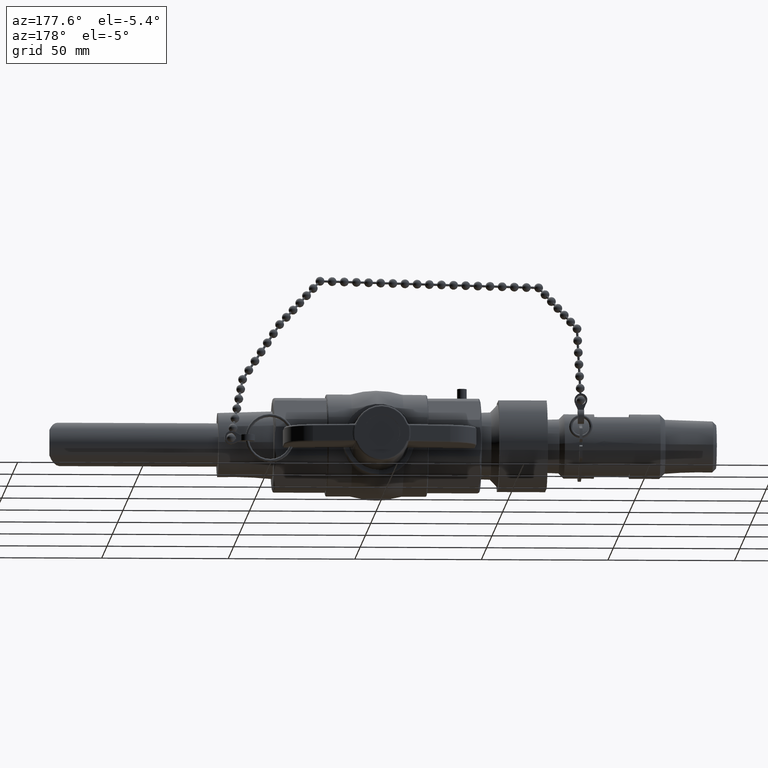
[diagram: clean part render]
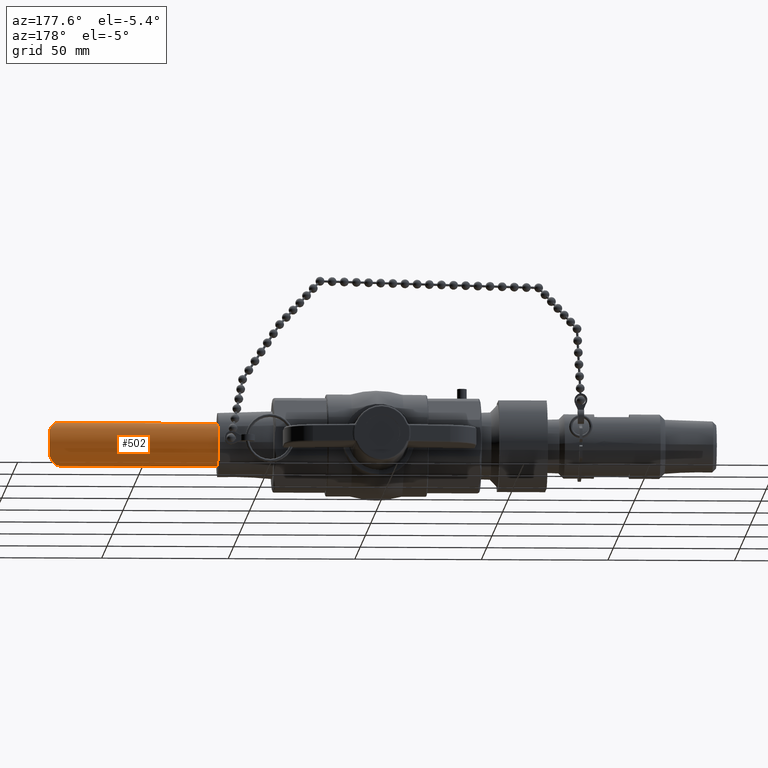
[diagram: same view with one face highlighted and labeled with its STEP entity id]
A machine part, auxiliary view. The second image highlights one B-rep face of the part: STEP entity #502.
In plain terms, the highlighted cylindrical surface (bore or boss wall) has radius 8.5725 mm, axis along (1, -0, 0).
Its self-contained STEP definition (entity closure, byte-faithful):
#425=CARTESIAN_POINT('',(2.468000000000000,-0.337500000000000,1.433204E-016));
#426=VERTEX_POINT('',#425);
#427=CARTESIAN_POINT('',(2.468000000000000,8.814487E-016,1.019886E-016));
#428=DIRECTION('',(-1.0,0.0,0.0));
#429=DIRECTION('',(0.0,1.0,0.0));
#430=AXIS2_PLACEMENT_3D('',#427,#428,#429);
#431=CIRCLE('',#430,0.337500000000001);
#432=EDGE_CURVE('',#426,#426,#431,.T.);
#474=CARTESIAN_POINT('',(1.528000000000000,9.818835E-016,-3.260173E-017));
#475=DIRECTION('',(1.0,-1.068455E-016,1.431812E-016));
#476=DIRECTION('',(0.0,1.0,0.0));
#477=AXIS2_PLACEMENT_3D('',#474,#475,#476);
#478=CYLINDRICAL_SURFACE('',#477,0.337500000000001);
#479=CARTESIAN_POINT('',(5.093000000000000,0.274500000000002,-0.196356818063442));
#480=VERTEX_POINT('',#479);
#481=CARTESIAN_POINT('',(5.093000000000000,0.274500000000002,0.196356818063443));
#482=VERTEX_POINT('',#481);
#483=CARTESIAN_POINT('',(4.934517351107447,6.179125E-016,4.551475E-016));
#484=DIRECTION('',(-0.866025403784439,0.500000000000001,-1.239986E-016));
#485=DIRECTION('',(0.500000000000000,0.866025403784438,7.159060E-017));
#486=AXIS2_PLACEMENT_3D('',#483,#484,#485);
#487=ELLIPSE('',#486,0.389711431702998,0.337500000000001);
#488=EDGE_CURVE('',#480,#482,#487,.T.);
#489=ORIENTED_EDGE('',*,*,#488,.T.);
#490=CARTESIAN_POINT('',(5.093000000000000,6.009794E-016,4.778392E-016));
#491=DIRECTION('',(1.0,0.0,0.0));
#492=DIRECTION('',(0.0,1.0,0.0));
#493=AXIS2_PLACEMENT_3D('',#490,#491,#492);
#494=CIRCLE('',#493,0.337500000000001);
#495=EDGE_CURVE('',#480,#482,#494,.T.);
#496=ORIENTED_EDGE('',*,*,#495,.F.);
#497=EDGE_LOOP('',(#489,#496));
#498=FACE_OUTER_BOUND('',#497,.T.);
#499=ORIENTED_EDGE('',*,*,#432,.F.);
#500=EDGE_LOOP('',(#499));
#501=FACE_BOUND('',#500,.T.);
#502=ADVANCED_FACE('',(#498,#501),#478,.T.);